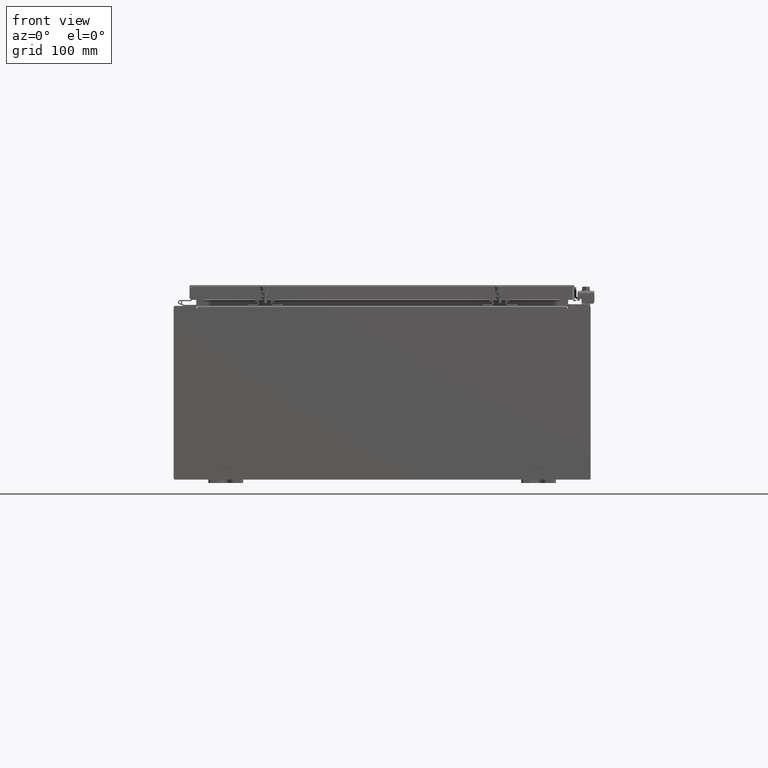
[diagram: clean part render]
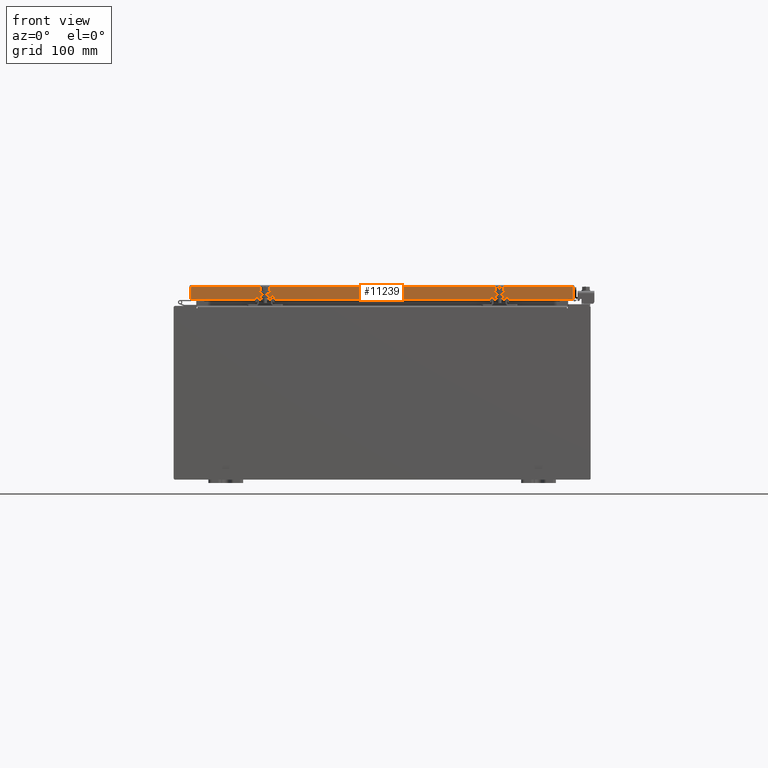
[diagram: same view with one face highlighted and labeled with its STEP entity id]
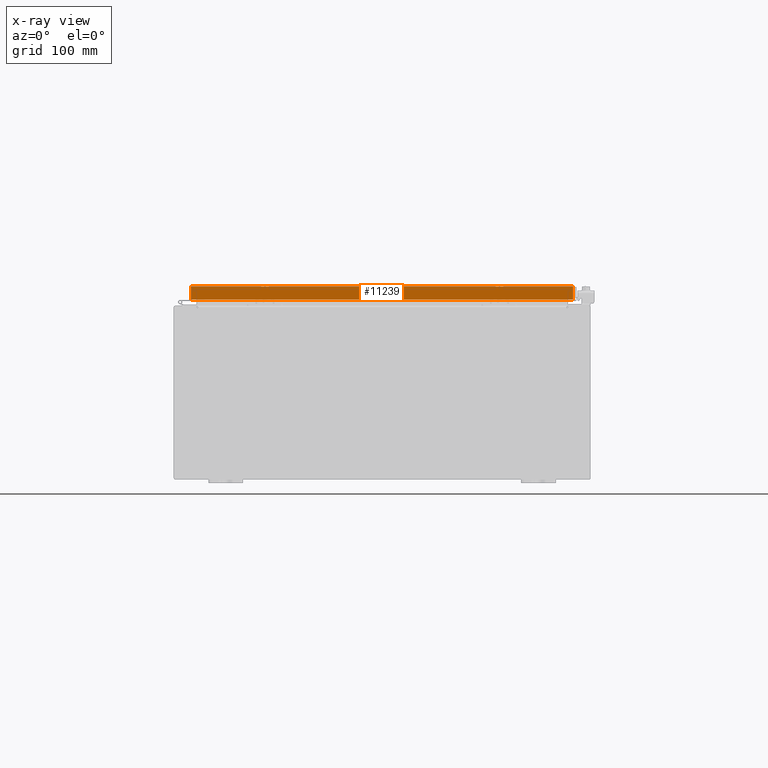
[diagram: x-ray of the same camera — body ghosted, the highlighted face saturated]
A machine part, front view. The second image highlights one B-rep face of the part: STEP entity #11239.
The next image is the same camera in x-ray: the body ghosted, the highlighted face saturated — about 0% of this face is hidden behind the body in this view.
In plain terms, the highlighted planar face has unit normal (0, 1, -0).
Its self-contained STEP definition (entity closure, byte-faithful):
#1153 = CARTESIAN_POINT ( 'NONE',  ( 10.23915786437626700, -14.09399999999999900, -0.8500000000000012000 ) ) ;
#2535 = ORIENTED_EDGE ( 'NONE', *, *, #14964, .F. ) ;
#2970 = VERTEX_POINT ( 'NONE', #34503 ) ;
#3526 = CARTESIAN_POINT ( 'NONE',  ( -10.98915786437626900, -14.09399999999999900, 3.999012166344521600E-014 ) ) ;
#3654 = EDGE_CURVE ( 'NONE', #16494, #28507, #29008, .T. ) ;
#4244 = ORIENTED_EDGE ( 'NONE', *, *, #19577, .F. ) ;
#4475 = PLANE ( 'NONE',  #27431 ) ;
#5485 = LINE ( 'NONE', #26187, #29433 ) ;
#5613 = VERTEX_POINT ( 'NONE', #24972 ) ;
#5905 = LINE ( 'NONE', #3526, #27169 ) ;
#7356 = CARTESIAN_POINT ( 'NONE',  ( -1.390238874262646300E-015, -14.09399999999999900, 3.999012166344521600E-014 ) ) ;
#9277 = VERTEX_POINT ( 'NONE', #17754 ) ;
#9404 = DIRECTION ( 'NONE',  ( -1.000000000000000000, 9.864047639156033700E-017, 1.233005954894504400E-016 ) ) ;
#10010 = VECTOR ( 'NONE', #33620, 39.37007874015748100 ) ;
#10257 = DIRECTION ( 'NONE',  ( 0.0000000000000000000, 2.818880942772360100E-015, 1.000000000000000000 ) ) ;
#10905 = CARTESIAN_POINT ( 'NONE',  ( -10.98915786437626700, -14.09399999999999900, -0.08770000000000224800 ) ) ;
#11239 = ADVANCED_FACE ( 'NONE', ( #17017 ), #4475, .F. ) ;
#13096 = CARTESIAN_POINT ( 'NONE',  ( 11.07799999999999900, -14.09400000000000100, -0.08770000000000224800 ) ) ;
#14964 = EDGE_CURVE ( 'NONE', #2970, #16494, #5485, .T. ) ;
#16494 = VERTEX_POINT ( 'NONE', #28509 ) ;
#16519 = VECTOR ( 'NONE', #20213, 39.37007874015748100 ) ;
#17017 = FACE_OUTER_BOUND ( 'NONE', #21101, .T. ) ;
#17572 = DIRECTION ( 'NONE',  ( 0.0000000000000000000, -2.818880942772360100E-015, -1.000000000000000000 ) ) ;
#17754 = CARTESIAN_POINT ( 'NONE',  ( -10.98915786437626700, -14.09400000000000100, -0.8499999999999969800 ) ) ;
#19577 = EDGE_CURVE ( 'NONE', #28507, #5613, #24273, .T. ) ;
#20213 = DIRECTION ( 'NONE',  ( -1.000000000000000000, 0.0000000000000000000, 0.0000000000000000000 ) ) ;
#21101 = EDGE_LOOP ( 'NONE', ( #35303, #36737, #24849, #4244, #34258, #2535 ) ) ;
#22508 = EDGE_CURVE ( 'NONE', #32925, #9277, #5905, .T. ) ;
#22742 = EDGE_CURVE ( 'NONE', #32925, #2970, #37093, .T. ) ;
#24273 = LINE ( 'NONE', #25887, #16519 ) ;
#24849 = ORIENTED_EDGE ( 'NONE', *, *, #34909, .F. ) ;
#24972 = CARTESIAN_POINT ( 'NONE',  ( -10.23915786437626700, -14.09399999999999900, -0.8500000000000012000 ) ) ;
#25887 = CARTESIAN_POINT ( 'NONE',  ( 10.23915786437626700, -14.09399999999999900, -0.8500000000000012000 ) ) ;
#26187 = CARTESIAN_POINT ( 'NONE',  ( 10.98915786437626900, -14.09400000000000100, -0.07469999999999978000 ) ) ;
#26764 = CARTESIAN_POINT ( 'NONE',  ( 11.07799999999999900, -14.09400000000000300, -0.8499999999999996400 ) ) ;
#27169 = VECTOR ( 'NONE', #35254, 39.37007874015748100 ) ;
#27431 = AXIS2_PLACEMENT_3D ( 'NONE', #7356, #27591, #10257 ) ;
#27508 = DIRECTION ( 'NONE',  ( 1.000000000000000000, -9.864047639155999200E-017, -9.196021172131615100E-046 ) ) ;
#27591 = DIRECTION ( 'NONE',  ( 9.864047639155998000E-017, 1.000000000000000000, -2.818880942772360100E-015 ) ) ;
#28507 = VERTEX_POINT ( 'NONE', #1153 ) ;
#28509 = CARTESIAN_POINT ( 'NONE',  ( 10.98915786437626900, -14.09400000000000300, -0.8499999999999996400 ) ) ;
#29008 = LINE ( 'NONE', #31320, #10010 ) ;
#29377 = VECTOR ( 'NONE', #27508, 39.37007874015748100 ) ;
#29433 = VECTOR ( 'NONE', #17572, 39.37007874015748100 ) ;
#30285 = LINE ( 'NONE', #26764, #37109 ) ;
#31320 = CARTESIAN_POINT ( 'NONE',  ( 11.07799999999999900, -14.09400000000000300, -0.8499999999999996400 ) ) ;
#32925 = VERTEX_POINT ( 'NONE', #10905 ) ;
#33620 = DIRECTION ( 'NONE',  ( -1.000000000000000000, 9.864047639156033700E-017, 1.233005954894504400E-016 ) ) ;
#34258 = ORIENTED_EDGE ( 'NONE', *, *, #3654, .F. ) ;
#34503 = CARTESIAN_POINT ( 'NONE',  ( 10.98915786437624400, -14.09400000000000100, -0.08770000000000224800 ) ) ;
#34909 = EDGE_CURVE ( 'NONE', #5613, #9277, #30285, .T. ) ;
#35254 = DIRECTION ( 'NONE',  ( 0.0000000000000000000, -2.818880942772360100E-015, -1.000000000000000000 ) ) ;
#35303 = ORIENTED_EDGE ( 'NONE', *, *, #22742, .F. ) ;
#36737 = ORIENTED_EDGE ( 'NONE', *, *, #22508, .T. ) ;
#37093 = LINE ( 'NONE', #13096, #29377 ) ;
#37109 = VECTOR ( 'NONE', #9404, 39.37007874015748100 ) ;